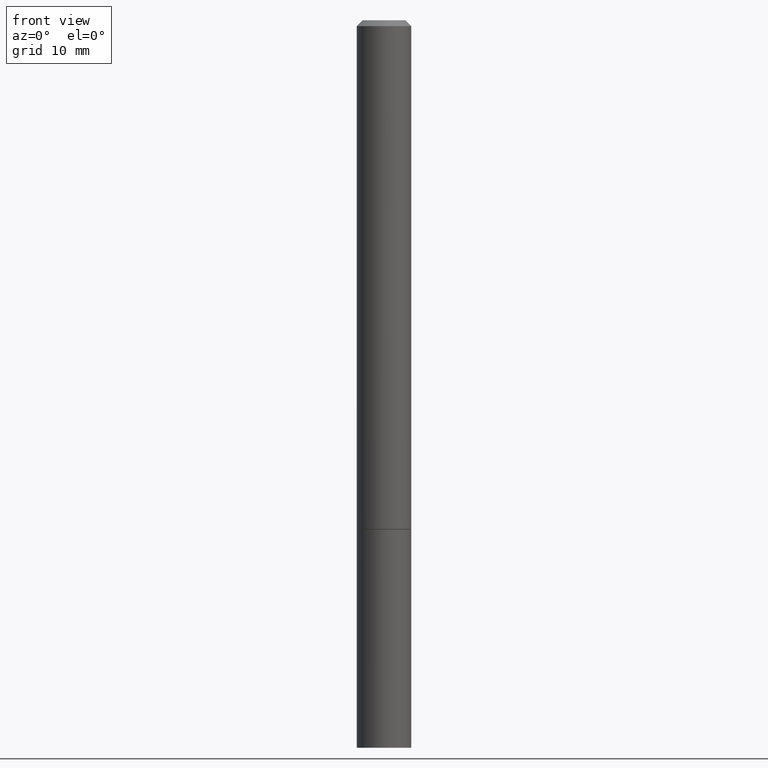
[diagram: clean part render]
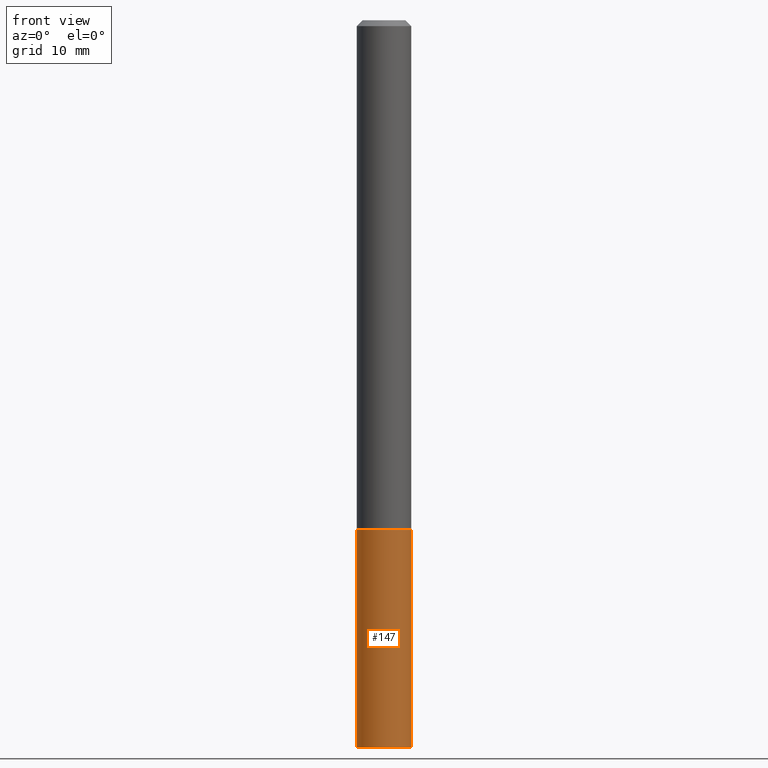
[diagram: same view with one face highlighted and labeled with its STEP entity id]
A machine part, front view. The second image highlights one B-rep face of the part: STEP entity #147.
In plain terms, the highlighted cylindrical surface (edge-blend (fillet) strip) has radius 2.3813 mm, axis along (-0, 0, 1).
Its self-contained STEP definition (entity closure, byte-faithful):
#30 = EDGE_CURVE ( 'NONE', #87, #134, #220, .T. ) ;
#43 = VECTOR ( 'NONE', #323, 39.37007874015748143 ) ;
#87 = VERTEX_POINT ( 'NONE', #177 ) ;
#89 = ORIENTED_EDGE ( 'NONE', *, *, #246, .F. ) ;
#90 = CIRCLE ( 'NONE', #374, 0.09375000000000001388 ) ;
#91 = CARTESIAN_POINT ( 'NONE',  ( -0.09374999999999984734, -8.074050596074776650E-15, -2.500000000000000000 ) ) ;
#112 = DIRECTION ( 'NONE',  ( 1.000000000000000000, -6.982962677686261189E-15, 0.000000000000000000 ) ) ;
#113 = DIRECTION ( 'NONE',  ( 1.000000000000000000, -6.982962677686272233E-15, 0.000000000000000000 ) ) ;
#115 = LINE ( 'NONE', #298, #43 ) ;
#123 = AXIS2_PLACEMENT_3D ( 'NONE', #240, #297, #327 ) ;
#124 = LINE ( 'NONE', #276, #136 ) ;
#128 = ORIENTED_EDGE ( 'NONE', *, *, #209, .T. ) ;
#134 = VERTEX_POINT ( 'NONE', #237 ) ;
#136 = VECTOR ( 'NONE', #270, 39.37007874015748143 ) ;
#145 = EDGE_CURVE ( 'NONE', #287, #134, #115, .T. ) ;
#146 = FACE_OUTER_BOUND ( 'NONE', #186, .T. ) ;
#147 = ADVANCED_FACE ( 'NONE', ( #146 ), #377, .T. ) ;
#162 = ORIENTED_EDGE ( 'NONE', *, *, #145, .T. ) ;
#176 = CARTESIAN_POINT ( 'NONE',  ( 6.113672015462842613E-29, -8.728703347107864943E-15, -2.500000000000000000 ) ) ;
#177 = CARTESIAN_POINT ( 'NONE',  ( -0.09375000000000001388, -6.753264030266591277E-15, -1.750000000000000222 ) ) ;
#186 = EDGE_LOOP ( 'NONE', ( #89, #128, #162, #223 ) ) ;
#209 = EDGE_CURVE ( 'NONE', #390, #287, #90, .T. ) ;
#220 = CIRCLE ( 'NONE', #325, 0.09375000000000001388 ) ;
#223 = ORIENTED_EDGE ( 'NONE', *, *, #30, .F. ) ;
#237 = CARTESIAN_POINT ( 'NONE',  ( 0.09375000000000001388, -6.764745094008592175E-15, -1.750000000000000222 ) ) ;
#240 = CARTESIAN_POINT ( 'NONE',  ( 0.000000000000000000, 0.000000000000000000, 0.000000000000000000 ) ) ;
#246 = EDGE_CURVE ( 'NONE', #390, #87, #124, .T. ) ;
#260 = CARTESIAN_POINT ( 'NONE',  ( 4.279570410823989044E-29, -6.110092342975505460E-15, -1.750000000000000222 ) ) ;
#270 = DIRECTION ( 'NONE',  ( -2.445468806185136877E-29, 3.491481338843145188E-15, 1.000000000000000000 ) ) ;
#276 = CARTESIAN_POINT ( 'NONE',  ( -0.09375000000000001388, 6.661338147750940229E-16, -4.611501647113973995E-30 ) ) ;
#287 = VERTEX_POINT ( 'NONE', #330 ) ;
#297 = DIRECTION ( 'NONE',  ( -2.445468806185136597E-29, 3.491481338843145583E-15, 1.000000000000000000 ) ) ;
#298 = CARTESIAN_POINT ( 'NONE',  ( 0.09375000000000001388, -6.546527510330875041E-16, 4.571415727308690506E-30 ) ) ;
#323 = DIRECTION ( 'NONE',  ( -2.445468806185136877E-29, 3.491481338843145188E-15, 1.000000000000000000 ) ) ;
#325 = AXIS2_PLACEMENT_3D ( 'NONE', #260, #341, #112 ) ;
#327 = DIRECTION ( 'NONE',  ( 1.000000000000000000, -6.982962677686265922E-15, 4.876176775795935793E-29 ) ) ;
#330 = CARTESIAN_POINT ( 'NONE',  ( 0.09374999999999984734, -9.371875034398942871E-15, -2.500000000000000000 ) ) ;
#341 = DIRECTION ( 'NONE',  ( -2.445468806185136597E-29, 3.491481338843145583E-15, 1.000000000000000000 ) ) ;
#374 = AXIS2_PLACEMENT_3D ( 'NONE', #176, #376, #113 ) ;
#376 = DIRECTION ( 'NONE',  ( -2.445468806185136597E-29, 3.491481338843145583E-15, 1.000000000000000000 ) ) ;
#377 = CYLINDRICAL_SURFACE ( 'NONE', #123, 0.09375000000000001388 ) ;
#390 = VERTEX_POINT ( 'NONE', #91 ) ;